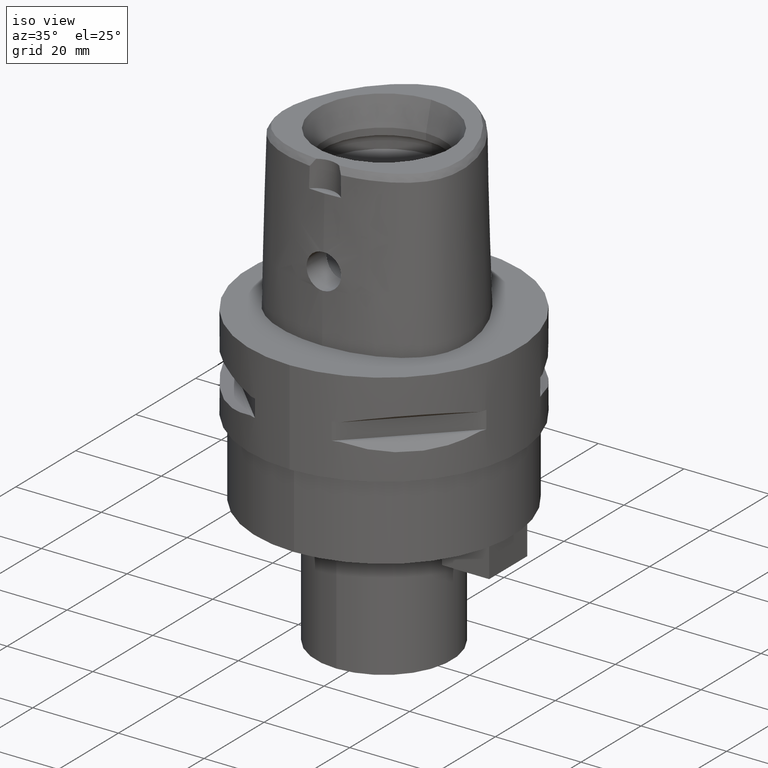
[diagram: clean part render]
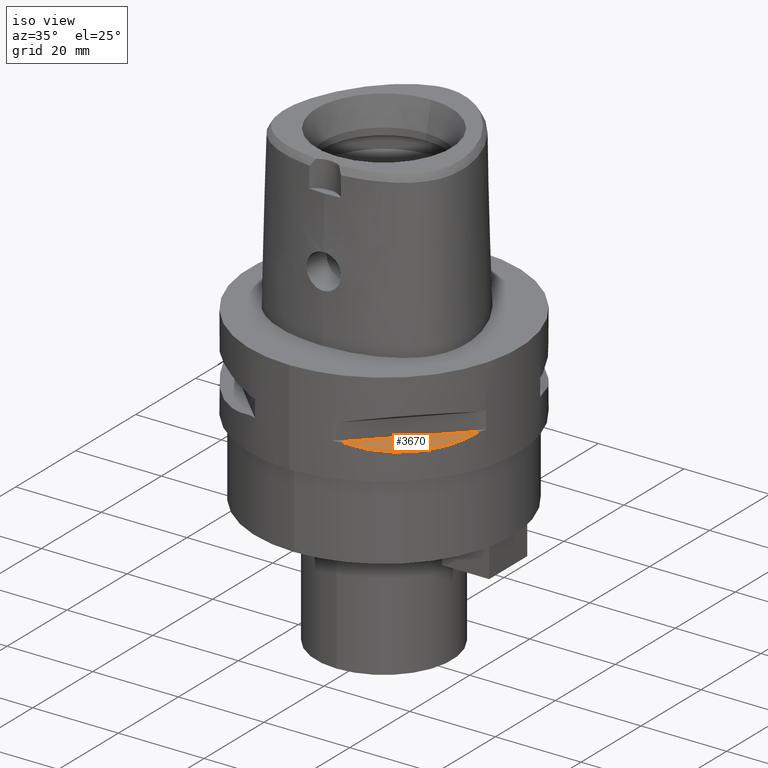
[diagram: same view with one face highlighted and labeled with its STEP entity id]
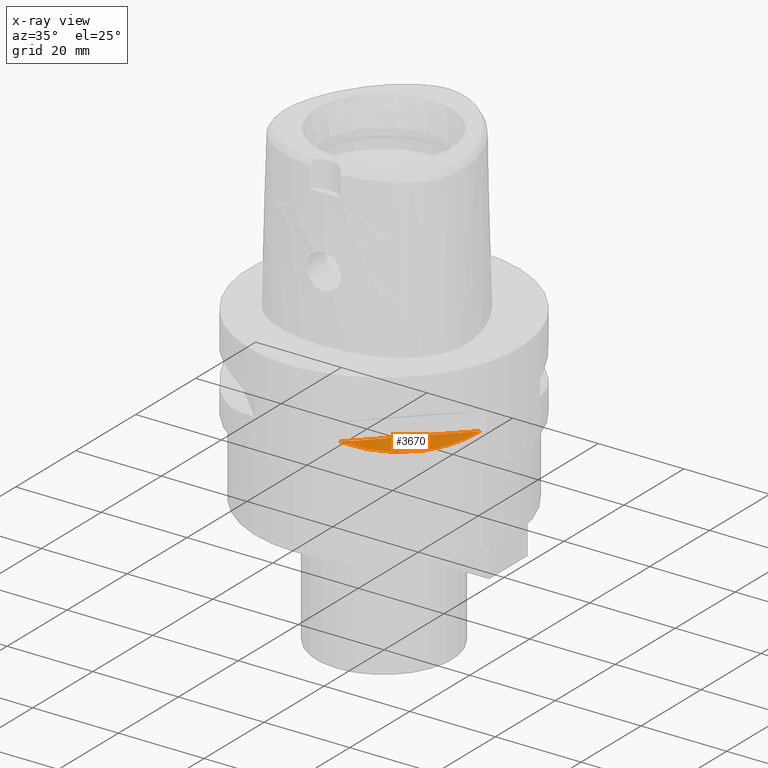
[diagram: x-ray of the same camera — body ghosted, the highlighted face saturated]
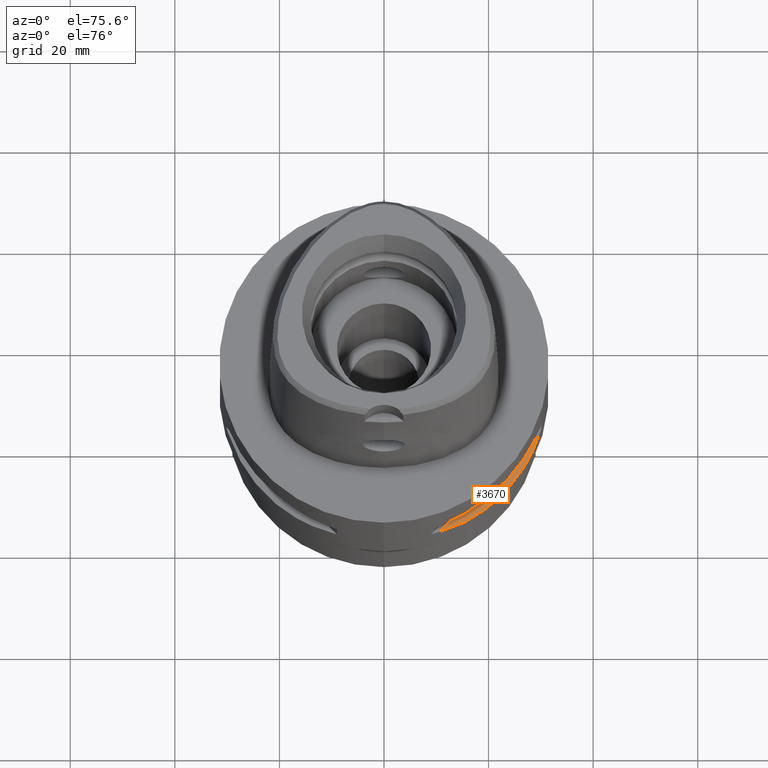
[diagram: same view with one face highlighted and labeled with its STEP entity id]
A machine part, iso view. The second image highlights one B-rep face of the part: STEP entity #3670.
The next image is the same camera in x-ray: the body ghosted, the highlighted face saturated — about 0% of this face is hidden behind the body in this view.
A second angle (auxiliary view) of the same face is appended — the face is thin or edge-on in the first view.
In plain terms, the highlighted planar face has unit normal (-0.3536, 0.3536, -0.866).
Its self-contained STEP definition (entity closure, byte-faithful):
#472=CARTESIAN_POINT('',(1.044775724750E1,-2.971690375018E1,-1.405E1));
#473=CARTESIAN_POINT('',(1.282388988809E1,-2.888151197365E1,-1.467900482380E1));
#474=CARTESIAN_POINT('',(1.711282138769E1,-2.674739463903E1,-1.555870402292E1));
#475=CARTESIAN_POINT('',(2.244574140438E1,-2.244574140438E1,-1.597971692370E1));
#476=CARTESIAN_POINT('',(2.674739463903E1,-1.711282138769E1,-1.555870402292E1));
#477=CARTESIAN_POINT('',(2.888151197365E1,-1.282388988809E1,-1.467900482380E1));
#478=CARTESIAN_POINT('',(2.971690375018E1,-1.044775724750E1,-1.405E1));
#1508=DIRECTION('',(7.071067811865E-1,7.071067811865E-1,0.E0));
#1509=VECTOR('',#1508,2.725068831944E1);
#1510=CARTESIAN_POINT('',(1.044775724750E1,-2.971690375018E1,-1.405E1));
#1511=LINE('',#1510,#1509);
#1794=CARTESIAN_POINT('',(1.044775724750E1,-2.971690375018E1,-1.405E1));
#1795=VERTEX_POINT('',#1794);
#1796=VERTEX_POINT('',#478);
#3661=CARTESIAN_POINT('',(3.422446612257E1,-5.940194875108E0,-1.405E1));
#3662=DIRECTION('',(-3.535533905933E-1,3.535533905933E-1,-8.660254037844E-1));
#3663=DIRECTION('',(6.123724356958E-1,-6.123724356958E-1,-5.E-1));
#3664=AXIS2_PLACEMENT_3D('',#3661,#3662,#3663);
#3665=PLANE('',#3664);
#3666=ORIENTED_EDGE('',*,*,#2704,.F.);
#3667=ORIENTED_EDGE('',*,*,#3654,.T.);
#3668=EDGE_LOOP('',(#3666,#3667));
#3669=FACE_OUTER_BOUND('',#3668,.F.);
#479=B_SPLINE_CURVE_WITH_KNOTS('',3,(#472,#473,#474,#475,#476,#477,#478),
.UNSPECIFIED.,.F.,.F.,(4,1,1,1,4),(0.E0,2.5E-1,5.E-1,7.5E-1,1.E0),
.UNSPECIFIED.);
#2704=EDGE_CURVE('',#1795,#1796,#479,.T.);
#3654=EDGE_CURVE('',#1795,#1796,#1511,.T.);
#3670=ADVANCED_FACE('',(#3669),#3665,.F.);